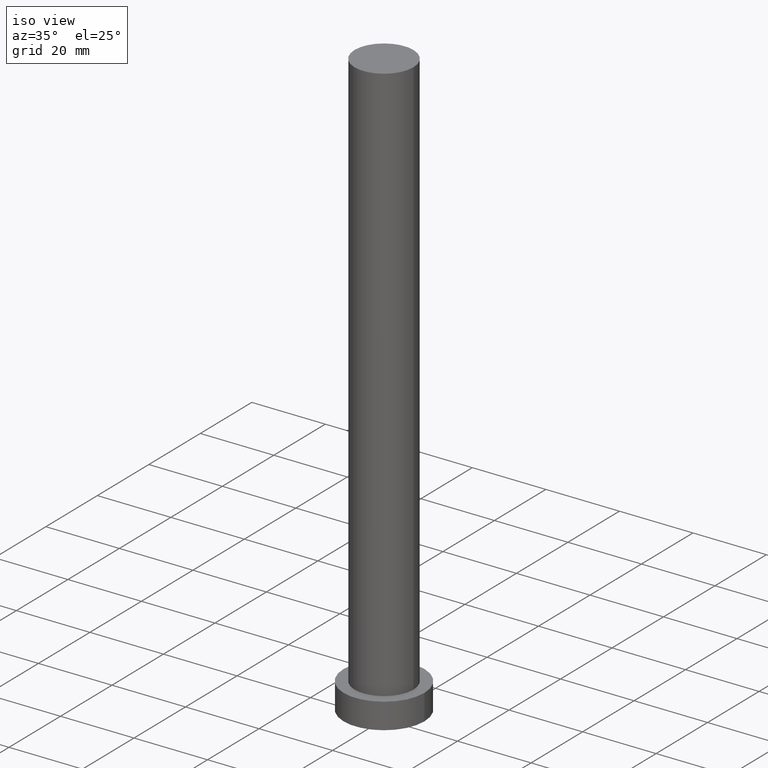
[diagram: clean part render]
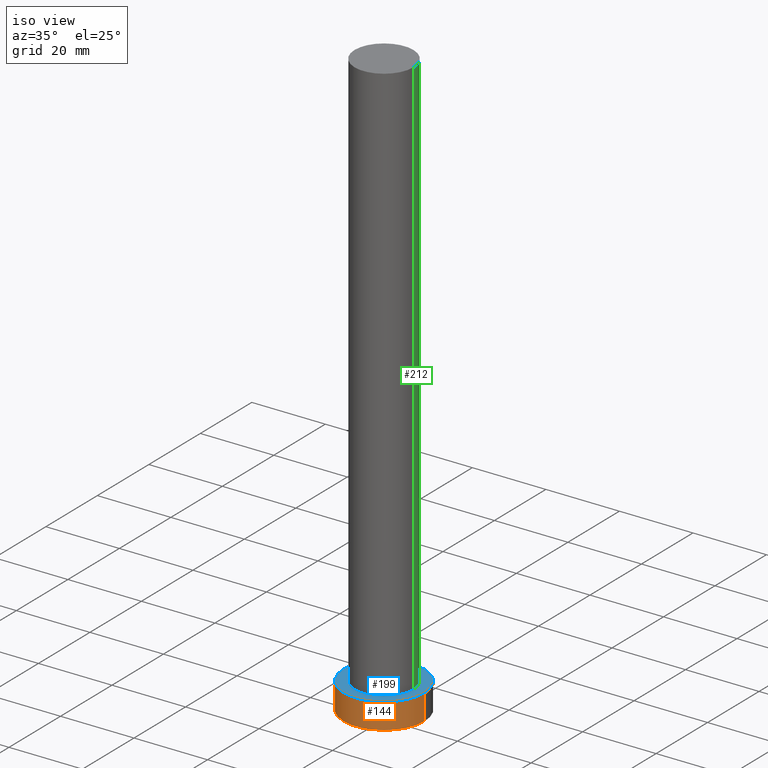
[diagram: same view with three faces highlighted in distinct colors, each labeled with its STEP entity id]
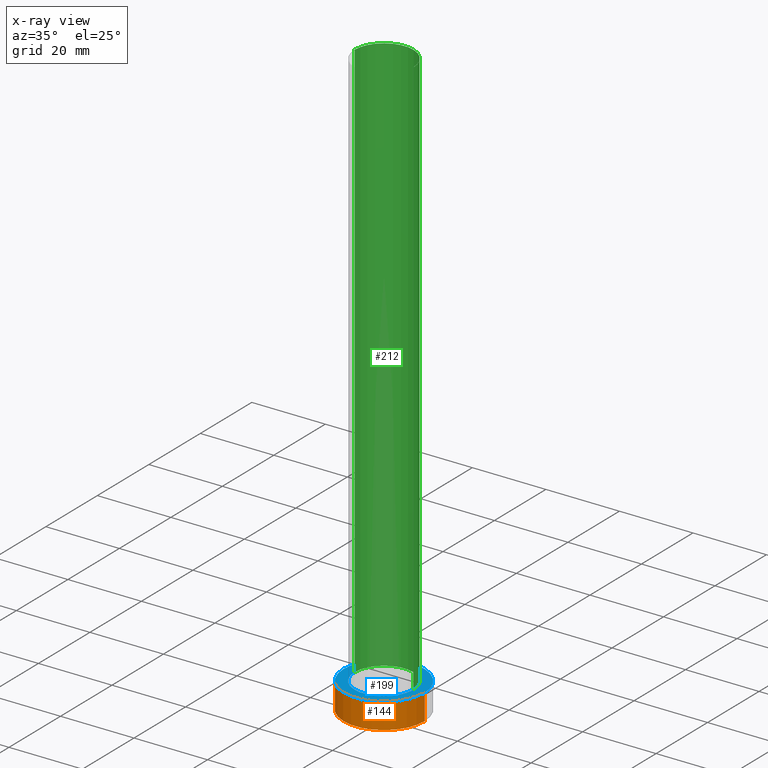
[diagram: x-ray of the same camera — body ghosted, the three highlighted faces saturated]
A machine part, iso view with three faces highlighted in distinct colors.
The next image is the same camera in x-ray (body ghosted, the three faces saturated) — at least one of them is partly hidden behind the body in this view.
Their STEP definitions:

[orange] entity #144 — the highlighted cylindrical surface (partial cylindrical patch) has radius 11 mm, axis along (-0, -0, -1).
#3 = DIRECTION ( 'NONE',  ( -0.000000000000000000, -0.000000000000000000, -1.000000000000000000 ) ) ;
#4 = LINE ( 'NONE', #25, #189 ) ;
#18 = EDGE_CURVE ( 'NONE', #234, #22, #4, .T. ) ;
#21 = DIRECTION ( 'NONE',  ( 1.000000000000000000, 0.000000000000000000, 0.000000000000000000 ) ) ;
#22 = VERTEX_POINT ( 'NONE', #119 ) ;
#23 = VECTOR ( 'NONE', #107, 1000.000000000000000 ) ;
#25 = CARTESIAN_POINT ( 'NONE',  ( -11.00000000000000000, 0.000000000000000000, 7.000000000000000000 ) ) ;
#30 = EDGE_CURVE ( 'NONE', #74, #194, #163, .T. ) ;
#32 = EDGE_LOOP ( 'NONE', ( #62, #115, #59, #137 ) ) ;
#58 = CIRCLE ( 'NONE', #148, 11.00000000000000000 ) ;
#59 = ORIENTED_EDGE ( 'NONE', *, *, #18, .T. ) ;
#62 = ORIENTED_EDGE ( 'NONE', *, *, #30, .F. ) ;
#74 = VERTEX_POINT ( 'NONE', #121 ) ;
#79 = AXIS2_PLACEMENT_3D ( 'NONE', #128, #247, #92 ) ;
#82 = FACE_OUTER_BOUND ( 'NONE', #32, .T. ) ;
#92 = DIRECTION ( 'NONE',  ( 1.000000000000000000, 0.000000000000000000, 0.000000000000000000 ) ) ;
#107 = DIRECTION ( 'NONE',  ( -0.000000000000000000, -0.000000000000000000, -1.000000000000000000 ) ) ;
#111 = CARTESIAN_POINT ( 'NONE',  ( -11.00000000000000000, 0.000000000000000000, 7.000000000000000000 ) ) ;
#115 = ORIENTED_EDGE ( 'NONE', *, *, #228, .F. ) ;
#119 = CARTESIAN_POINT ( 'NONE',  ( -11.00000000000000000, 0.000000000000000000, 0.000000000000000000 ) ) ;
#121 = CARTESIAN_POINT ( 'NONE',  ( 11.00000000000000000, 1.347111479062088405E-15, 7.000000000000000000 ) ) ;
#123 = AXIS2_PLACEMENT_3D ( 'NONE', #160, #236, #165 ) ;
#128 = CARTESIAN_POINT ( 'NONE',  ( 0.000000000000000000, 0.000000000000000000, 7.000000000000000000 ) ) ;
#137 = ORIENTED_EDGE ( 'NONE', *, *, #161, .T. ) ;
#144 = ADVANCED_FACE ( 'NONE', ( #82 ), #240, .T. ) ;
#146 = CARTESIAN_POINT ( 'NONE',  ( 0.000000000000000000, 0.000000000000000000, 0.000000000000000000 ) ) ;
#148 = AXIS2_PLACEMENT_3D ( 'NONE', #146, #223, #21 ) ;
#160 = CARTESIAN_POINT ( 'NONE',  ( 0.000000000000000000, 0.000000000000000000, 7.000000000000000000 ) ) ;
#161 = EDGE_CURVE ( 'NONE', #22, #194, #58, .T. ) ;
#163 = LINE ( 'NONE', #242, #23 ) ;
#165 = DIRECTION ( 'NONE',  ( -1.000000000000000000, 0.000000000000000000, 0.000000000000000000 ) ) ;
#189 = VECTOR ( 'NONE', #3, 1000.000000000000000 ) ;
#190 = CARTESIAN_POINT ( 'NONE',  ( 11.00000000000000000, 1.347111479062088405E-15, 0.000000000000000000 ) ) ;
#194 = VERTEX_POINT ( 'NONE', #190 ) ;
#198 = CIRCLE ( 'NONE', #79, 11.00000000000000000 ) ;
#223 = DIRECTION ( 'NONE',  ( 0.000000000000000000, 0.000000000000000000, 1.000000000000000000 ) ) ;
#228 = EDGE_CURVE ( 'NONE', #234, #74, #198, .T. ) ;
#234 = VERTEX_POINT ( 'NONE', #111 ) ;
#236 = DIRECTION ( 'NONE',  ( -0.000000000000000000, -0.000000000000000000, -1.000000000000000000 ) ) ;
#240 = CYLINDRICAL_SURFACE ( 'NONE', #123, 11.00000000000000000 ) ;
#242 = CARTESIAN_POINT ( 'NONE',  ( 11.00000000000000000, 1.347111479062088405E-15, 7.000000000000000000 ) ) ;
#247 = DIRECTION ( 'NONE',  ( 0.000000000000000000, 0.000000000000000000, 1.000000000000000000 ) ) ;

[blue] entity #199 — the highlighted planar face has unit normal (0, 0, 1).
#8 = CARTESIAN_POINT ( 'NONE',  ( -8.000000000000000000, 0.000000000000000000, 7.000000000000000000 ) ) ;
#9 = AXIS2_PLACEMENT_3D ( 'NONE', #129, #207, #171 ) ;
#20 = EDGE_CURVE ( 'NONE', #96, #134, #135, .T. ) ;
#34 = EDGE_LOOP ( 'NONE', ( #124, #117 ) ) ;
#38 = ORIENTED_EDGE ( 'NONE', *, *, #228, .T. ) ;
#39 = EDGE_CURVE ( 'NONE', #74, #234, #112, .T. ) ;
#43 = DIRECTION ( 'NONE',  ( 1.000000000000000000, 0.000000000000000000, 0.000000000000000000 ) ) ;
#57 = DIRECTION ( 'NONE',  ( 1.000000000000000000, 0.000000000000000000, 0.000000000000000000 ) ) ;
#67 = DIRECTION ( 'NONE',  ( 1.000000000000000000, 0.000000000000000000, 0.000000000000000000 ) ) ;
#74 = VERTEX_POINT ( 'NONE', #121 ) ;
#77 = ORIENTED_EDGE ( 'NONE', *, *, #39, .T. ) ;
#79 = AXIS2_PLACEMENT_3D ( 'NONE', #128, #247, #92 ) ;
#80 = CARTESIAN_POINT ( 'NONE',  ( 0.000000000000000000, 0.000000000000000000, 7.000000000000000000 ) ) ;
#88 = CARTESIAN_POINT ( 'NONE',  ( 0.000000000000000000, 0.000000000000000000, 7.000000000000000000 ) ) ;
#92 = DIRECTION ( 'NONE',  ( 1.000000000000000000, 0.000000000000000000, 0.000000000000000000 ) ) ;
#93 = FACE_BOUND ( 'NONE', #34, .T. ) ;
#96 = VERTEX_POINT ( 'NONE', #157 ) ;
#111 = CARTESIAN_POINT ( 'NONE',  ( -11.00000000000000000, 0.000000000000000000, 7.000000000000000000 ) ) ;
#112 = CIRCLE ( 'NONE', #225, 11.00000000000000000 ) ;
#117 = ORIENTED_EDGE ( 'NONE', *, *, #20, .F. ) ;
#118 = AXIS2_PLACEMENT_3D ( 'NONE', #176, #221, #43 ) ;
#121 = CARTESIAN_POINT ( 'NONE',  ( 11.00000000000000000, 1.347111479062088405E-15, 7.000000000000000000 ) ) ;
#124 = ORIENTED_EDGE ( 'NONE', *, *, #241, .F. ) ;
#128 = CARTESIAN_POINT ( 'NONE',  ( 0.000000000000000000, 0.000000000000000000, 7.000000000000000000 ) ) ;
#129 = CARTESIAN_POINT ( 'NONE',  ( 0.000000000000000000, 0.000000000000000000, 7.000000000000000000 ) ) ;
#133 = AXIS2_PLACEMENT_3D ( 'NONE', #88, #167, #67 ) ;
#134 = VERTEX_POINT ( 'NONE', #8 ) ;
#135 = CIRCLE ( 'NONE', #118, 8.000000000000000000 ) ;
#139 = DIRECTION ( 'NONE',  ( 0.000000000000000000, 0.000000000000000000, 1.000000000000000000 ) ) ;
#157 = CARTESIAN_POINT ( 'NONE',  ( 8.000000000000000000, 9.797174393178825657E-16, 7.000000000000000000 ) ) ;
#167 = DIRECTION ( 'NONE',  ( 0.000000000000000000, 0.000000000000000000, 1.000000000000000000 ) ) ;
#171 = DIRECTION ( 'NONE',  ( 1.000000000000000000, 0.000000000000000000, -0.000000000000000000 ) ) ;
#176 = CARTESIAN_POINT ( 'NONE',  ( 0.000000000000000000, 0.000000000000000000, 7.000000000000000000 ) ) ;
#185 = PLANE ( 'NONE',  #9 ) ;
#198 = CIRCLE ( 'NONE', #79, 11.00000000000000000 ) ;
#199 = ADVANCED_FACE ( 'NONE', ( #93, #245 ), #185, .T. ) ;
#202 = EDGE_LOOP ( 'NONE', ( #38, #77 ) ) ;
#207 = DIRECTION ( 'NONE',  ( 0.000000000000000000, 0.000000000000000000, 1.000000000000000000 ) ) ;
#221 = DIRECTION ( 'NONE',  ( 0.000000000000000000, 0.000000000000000000, 1.000000000000000000 ) ) ;
#225 = AXIS2_PLACEMENT_3D ( 'NONE', #80, #139, #57 ) ;
#228 = EDGE_CURVE ( 'NONE', #234, #74, #198, .T. ) ;
#231 = CIRCLE ( 'NONE', #133, 8.000000000000000000 ) ;
#234 = VERTEX_POINT ( 'NONE', #111 ) ;
#241 = EDGE_CURVE ( 'NONE', #134, #96, #231, .T. ) ;
#245 = FACE_OUTER_BOUND ( 'NONE', #202, .T. ) ;
#247 = DIRECTION ( 'NONE',  ( 0.000000000000000000, 0.000000000000000000, 1.000000000000000000 ) ) ;

[green] entity #212 — the highlighted cylindrical surface (edge-blend (fillet) strip) has radius 8 mm, axis along (-0, -0, -1).
#6 = EDGE_LOOP ( 'NONE', ( #83, #205, #213, #76 ) ) ;
#7 = EDGE_CURVE ( 'NONE', #53, #96, #40, .T. ) ;
#8 = CARTESIAN_POINT ( 'NONE',  ( -8.000000000000000000, 0.000000000000000000, 7.000000000000000000 ) ) ;
#14 = CYLINDRICAL_SURFACE ( 'NONE', #174, 8.000000000000000000 ) ;
#20 = EDGE_CURVE ( 'NONE', #96, #134, #135, .T. ) ;
#24 = CARTESIAN_POINT ( 'NONE',  ( 8.000000000000000000, 9.797174393178825657E-16, 160.0000000000000000 ) ) ;
#28 = DIRECTION ( 'NONE',  ( -1.000000000000000000, 0.000000000000000000, 0.000000000000000000 ) ) ;
#35 = VECTOR ( 'NONE', #125, 1000.000000000000000 ) ;
#40 = LINE ( 'NONE', #238, #78 ) ;
#43 = DIRECTION ( 'NONE',  ( 1.000000000000000000, 0.000000000000000000, 0.000000000000000000 ) ) ;
#47 = DIRECTION ( 'NONE',  ( 0.000000000000000000, 0.000000000000000000, 1.000000000000000000 ) ) ;
#53 = VERTEX_POINT ( 'NONE', #24 ) ;
#65 = AXIS2_PLACEMENT_3D ( 'NONE', #97, #47, #109 ) ;
#70 = CARTESIAN_POINT ( 'NONE',  ( -8.000000000000000000, 0.000000000000000000, 160.0000000000000000 ) ) ;
#76 = ORIENTED_EDGE ( 'NONE', *, *, #84, .F. ) ;
#78 = VECTOR ( 'NONE', #218, 1000.000000000000000 ) ;
#83 = ORIENTED_EDGE ( 'NONE', *, *, #166, .F. ) ;
#84 = EDGE_CURVE ( 'NONE', #177, #134, #158, .T. ) ;
#96 = VERTEX_POINT ( 'NONE', #157 ) ;
#97 = CARTESIAN_POINT ( 'NONE',  ( 0.000000000000000000, 0.000000000000000000, 160.0000000000000000 ) ) ;
#109 = DIRECTION ( 'NONE',  ( 1.000000000000000000, 0.000000000000000000, 0.000000000000000000 ) ) ;
#118 = AXIS2_PLACEMENT_3D ( 'NONE', #176, #221, #43 ) ;
#125 = DIRECTION ( 'NONE',  ( -0.000000000000000000, -0.000000000000000000, -1.000000000000000000 ) ) ;
#130 = CIRCLE ( 'NONE', #65, 8.000000000000000000 ) ;
#134 = VERTEX_POINT ( 'NONE', #8 ) ;
#135 = CIRCLE ( 'NONE', #118, 8.000000000000000000 ) ;
#145 = CARTESIAN_POINT ( 'NONE',  ( -8.000000000000000000, 0.000000000000000000, 160.0000000000000000 ) ) ;
#157 = CARTESIAN_POINT ( 'NONE',  ( 8.000000000000000000, 9.797174393178825657E-16, 7.000000000000000000 ) ) ;
#158 = LINE ( 'NONE', #145, #35 ) ;
#166 = EDGE_CURVE ( 'NONE', #53, #177, #130, .T. ) ;
#174 = AXIS2_PLACEMENT_3D ( 'NONE', #224, #248, #28 ) ;
#176 = CARTESIAN_POINT ( 'NONE',  ( 0.000000000000000000, 0.000000000000000000, 7.000000000000000000 ) ) ;
#177 = VERTEX_POINT ( 'NONE', #70 ) ;
#205 = ORIENTED_EDGE ( 'NONE', *, *, #7, .T. ) ;
#212 = ADVANCED_FACE ( 'NONE', ( #227 ), #14, .T. ) ;
#213 = ORIENTED_EDGE ( 'NONE', *, *, #20, .T. ) ;
#218 = DIRECTION ( 'NONE',  ( -0.000000000000000000, -0.000000000000000000, -1.000000000000000000 ) ) ;
#221 = DIRECTION ( 'NONE',  ( 0.000000000000000000, 0.000000000000000000, 1.000000000000000000 ) ) ;
#224 = CARTESIAN_POINT ( 'NONE',  ( 0.000000000000000000, 0.000000000000000000, 160.0000000000000000 ) ) ;
#227 = FACE_OUTER_BOUND ( 'NONE', #6, .T. ) ;
#238 = CARTESIAN_POINT ( 'NONE',  ( 8.000000000000000000, 9.797174393178825657E-16, 160.0000000000000000 ) ) ;
#248 = DIRECTION ( 'NONE',  ( -0.000000000000000000, -0.000000000000000000, -1.000000000000000000 ) ) ;